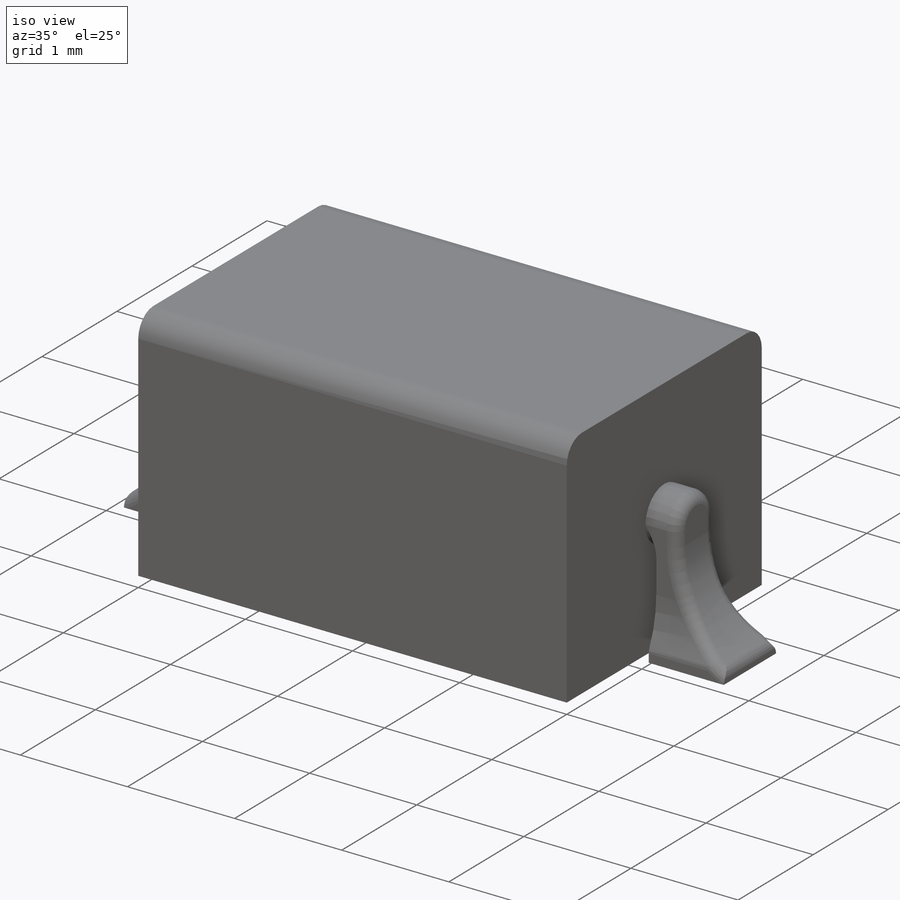
[diagram: iso view]
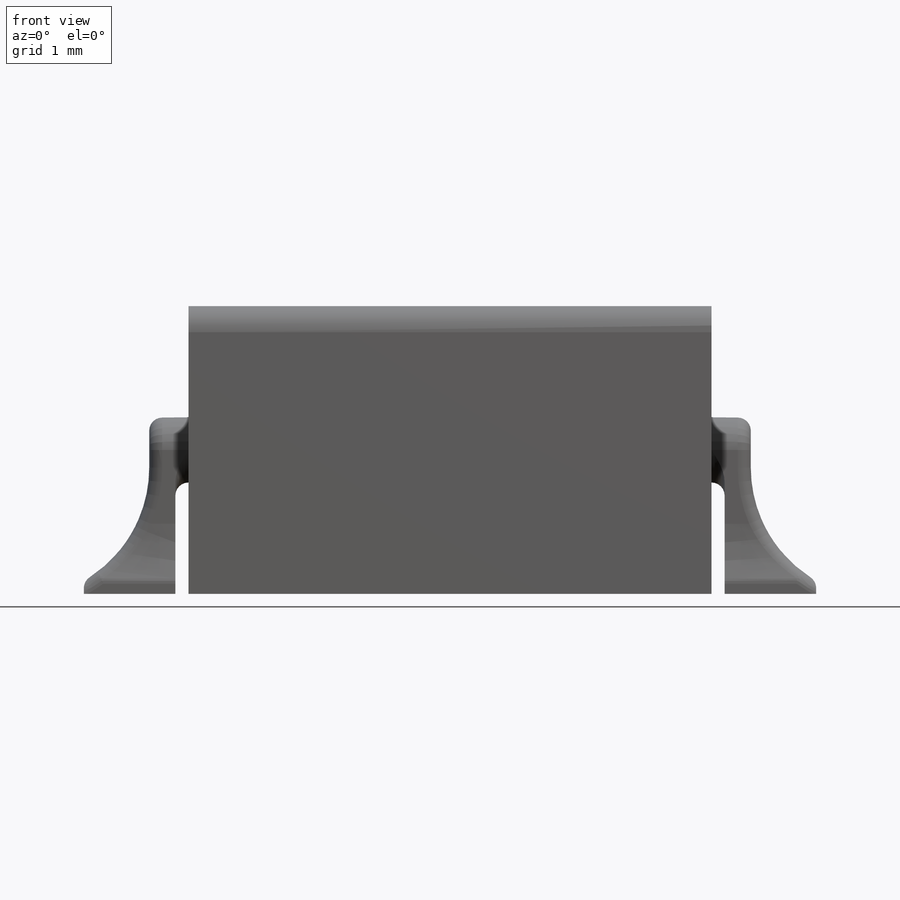
[diagram: front view]
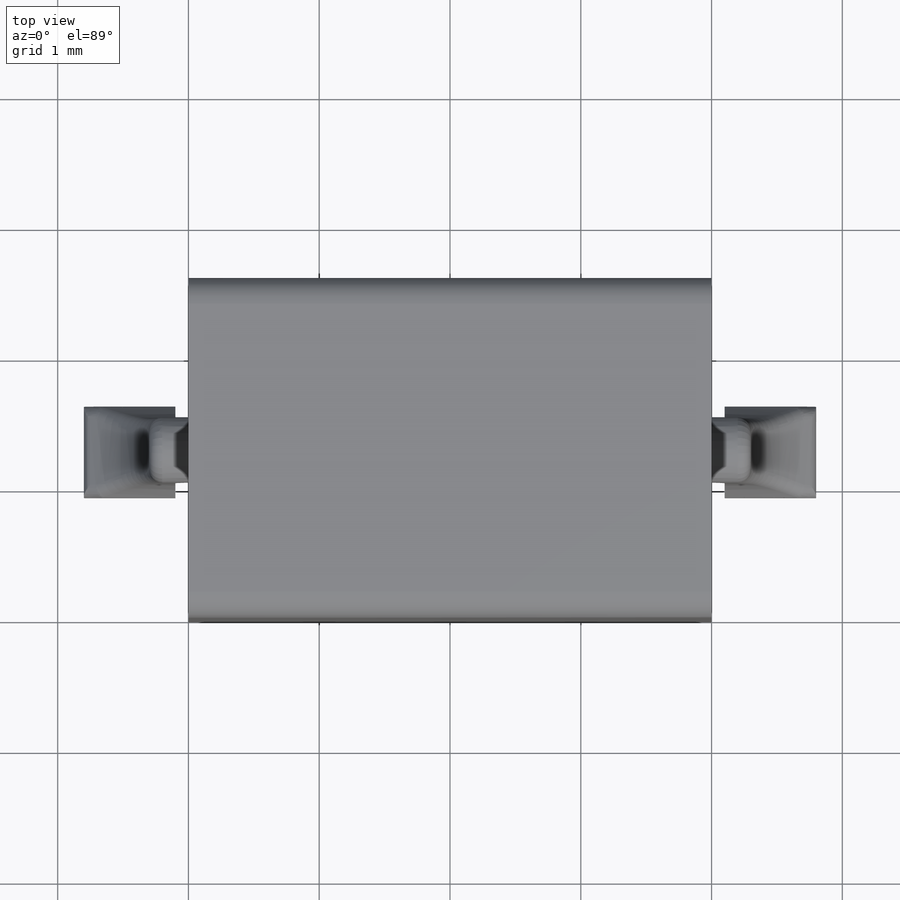
[diagram: top view]
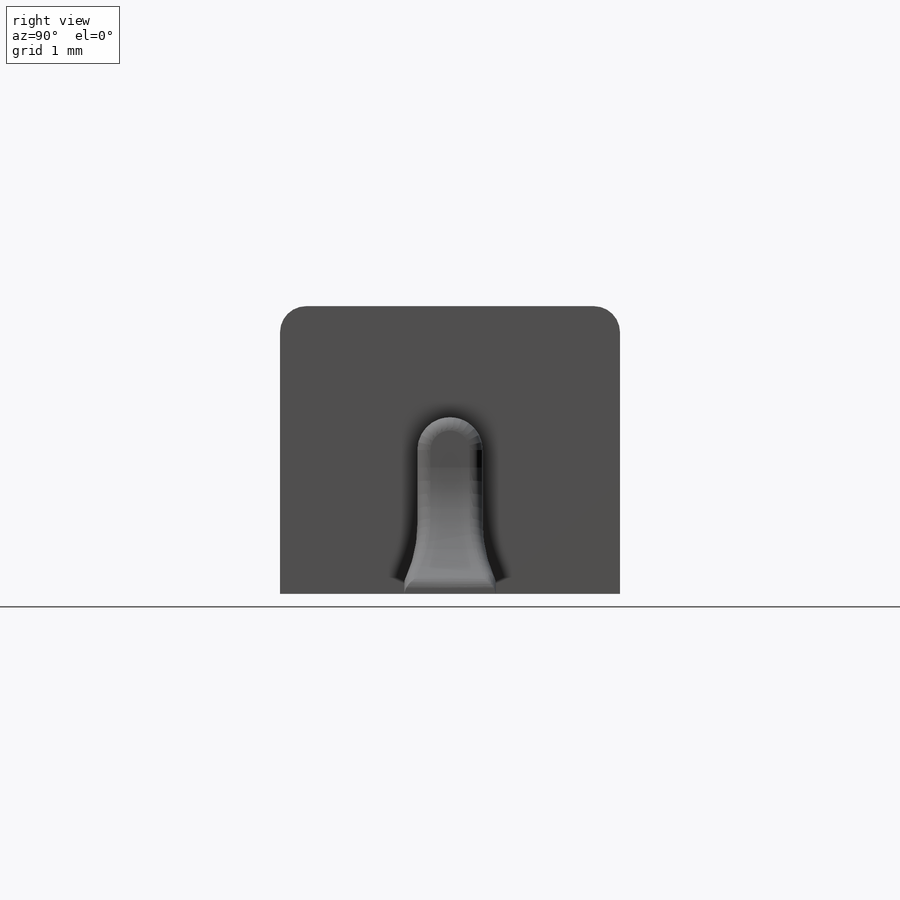
[diagram: right view]
SOLIDWORKS PART (.sldprt)
format: sldprt  version: not decoded by parser v0  size: 371,712 bytes
history: native  units: mm
features: sketch x7, extrude x7, fillet x5, plane x4, material x1 (+10 scaffold rows collapsed)
feature tree (34):
  scaffold x10  (default folders/planes/origin — collapsed)
  material  "Material <not specified>"
  plane  "Plan de face"
  plane  "Plan de dessus"
  plane  "Plan de droite"
  sketch  "Esquisse1"  dims[D1=4.0mm D2=2.6mm]
  extrude  "Boss.-Extru.1"  Depth=2.2mm
  fillet  "Congé1"  Radius=0.2mm
  sketch  "Esquisse2"  dims[D1=0.5mm]
  extrude  "Boss.-Extru.2"  Depth=0.3mm
  plane  "Plan1"  Offset=1.1mm
  sketch  "Esquisse3"  dims[D1=0.2mm]
  extrude  "Boss.-Extru.3"  Depth=1.1mm
  sketch  "Esquisse4"  dims[D1=0.1mm D2=0.35mm]
  extrude  "Boss.-Extru.4"  Depth=0.5mm
  sketch  "Esquisse5"  dims[D1=0.0mm]
  extrude  "Boss.-Extru.5"  Depth=0.3mm
  sketch  "Esquisse6"  dims[D1=0.2mm]
  extrude  "Boss.-Extru.6"  Depth=1.1mm
  sketch  "Esquisse7"  dims[D1=0.0mm]
  extrude  "Boss.-Extru.7"  Depth=0.5mm
  fillet  "Congé8"  Radius=1mm
  fillet  "Congé9"  Radius=0.1mm
  fillet  "Congé10"  Radius=0.1mm
  fillet  "Congé11"  Radius=0.1mm
decode coverage: 19 of 19 modeling features carry decoded parameters
note: suppression state not decoded; provenance and decode notes live in map.json
